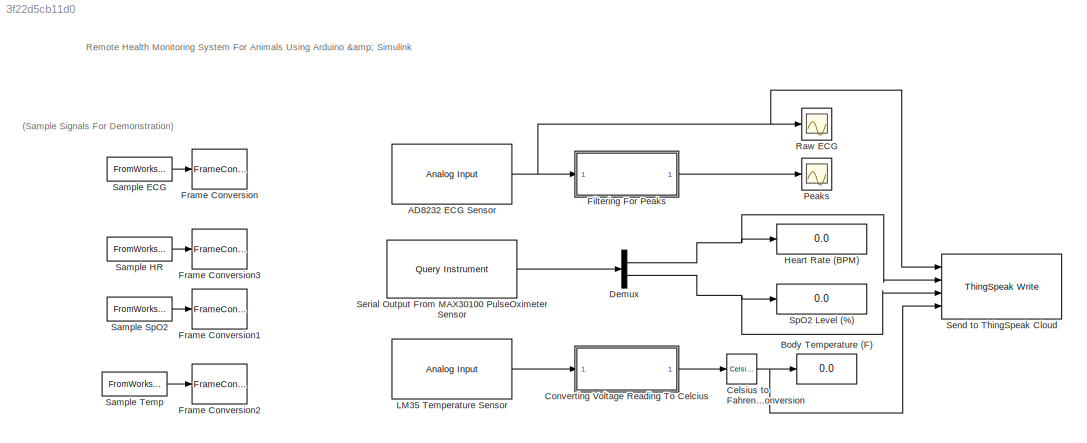
MODEL slx_3f22d5cb11d0
KIND model
CONFIG AbsTol = auto
CONFIG EnableMultiTasking = off
CONFIG FixedStep = auto
CONFIG MaxStep = auto
CONFIG MinStep = auto
CONFIG RelTol = 1e-3
CONFIG SampleTimeConstraint = Unconstrained
CONFIG Solver = VariableStepAuto
CONFIG SolverName = VariableStepAuto
CONFIG StartTime = 0.0
CONFIG StopTime = inf
BLOCK [Reference] AD8232 ECG Sensor   REF=arduinolib/Analog Input
  Ports = [0, 1]
  SourceBlock = arduinolib/Analog Input
  SourceProductBaseCode = ARDUINO
  SourceProductName = Simulink Support Package for Arduino Hardware
  SourceType = Arduino Analog Input
BLOCK [Display] Body Temperature (F) 
  Decimation = 1
  Ports = [1]
BLOCK [Reference] Celsius to Fahrenheit Conversion  REF=simulink_extras/Transformations/Celsius to
Fahrenheit
  Ports = [1, 1]
  SourceBlock = simulink_extras/Transformations/Celsius to\nFahrenheit
  SourceProductBaseCode = SL
  SourceProductName = Simulink
  SourceType = CelsiusToFahrenheit
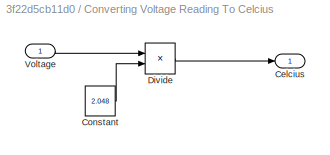
BLOCK [SubSystem] Converting Voltage Reading To Celcius 
  Ports = [1, 1]
  RequestExecContextInheritance = off
BLOCK [Outport] Converting Voltage Reading To Celcius /Celcius
  IconDisplay = Port number
BLOCK [Constant] Converting Voltage Reading To Celcius /Constant
  Value = 2.048
BLOCK [Product] Converting Voltage Reading To Celcius /Divide
  InputSameDT = off
  Inputs = */
  OutDataTypeStr = Inherit: Inherit via internal rule
  Ports = [2, 1]
  RndMeth = Floor
  SaturateOnIntegerOverflow = off
BLOCK [Inport] Converting Voltage Reading To Celcius /Voltage
  IconDisplay = Port number
BLOCK [Demux] Demux
  DisplayOption = bar
  Outputs = 2
  Ports = [1, 2]
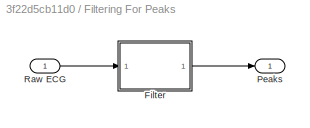
BLOCK [SubSystem] Filtering For Peaks 
  Ports = [1, 1]
  RequestExecContextInheritance = off
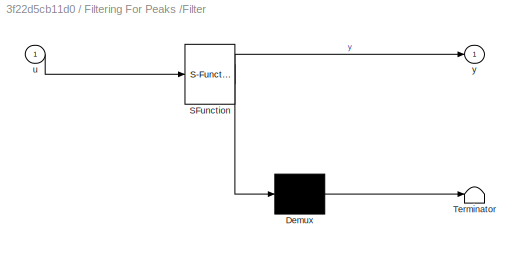
BLOCK [SubSystem] Filtering For Peaks /Filter
  ErrorFcn = Stateflow.Translate.translate
  PermitHierarchicalResolution = ExplicitOnly
  Ports = [1, 1]
  RequestExecContextInheritance = off
  SFBlockType = MATLAB Function
  TreatAsAtomicUnit = on
BLOCK [Demux] Filtering For Peaks /Filter/ Demux 
  Outputs = 1
  Ports = [1, 1]
BLOCK [S-Function] Filtering For Peaks /Filter/ SFunction 
  EnableBusSupport = on
  FunctionName = sf_sfun
  PortCounts = [1 2]
  Ports = [1, 2]
  SFcnIsStateOwnerBlock = off
  SFunctionDeploymentMode = off
  Tag = Stateflow S-Function RemoteHealthMonitoringSystem 3
BLOCK [Terminator] Filtering For Peaks /Filter/ Terminator 
BLOCK [Inport] Filtering For Peaks /Filter/u
  IconDisplay = Port number
BLOCK [Outport] Filtering For Peaks /Filter/y
  IconDisplay = Port number
BLOCK [Outport] Filtering For Peaks /Peaks
  IconDisplay = Port number
BLOCK [Inport] Filtering For Peaks /Raw ECG
  IconDisplay = Port number
BLOCK [FrameConversion] Frame Conversion
  Commented = on
  Ports = [1, 1]
BLOCK [FrameConversion] Frame Conversion1
  Commented = on
  Ports = [1, 1]
BLOCK [FrameConversion] Frame Conversion2
  Commented = on
  Ports = [1, 1]
BLOCK [FrameConversion] Frame Conversion3
  Commented = on
  Ports = [1, 1]
BLOCK [Display] Heart Rate (BPM)
  Decimation = 1
  Ports = [1]
BLOCK [Reference] LM35 Temperature Sensor   REF=arduinolib/Analog Input
  Ports = [0, 1]
  SourceBlock = arduinolib/Analog Input
  SourceProductBaseCode = ARDUINO
  SourceProductName = Simulink Support Package for Arduino Hardware
  SourceType = Arduino Analog Input
BLOCK [Scope] Peaks 
  Floating = off
  NumInputPorts = 1
  Ports = [1]
  ScopeSpecificationString = Simulink.scopes.TimeScopeBlockCfg('CurrentConfiguration', extmgr.ConfigurationSet(extmgr.Configuration('Core','General UI',true),extmgr.Configuration('Core','Source UI',true),extmgr.Configuration('Sources','WiredSimulink',true,'DataLoggingVariableName','ScopeData1'),extmgr.Configuration('Visuals','Time Domain',true,'SerializedDisplays',{struct('MinYLimReal','-31.125','MaxYLimReal','280.125','YLabe...<+1394ch>
BLOCK [Scope] Raw ECG
  Floating = off
  NumInputPorts = 1
  Ports = [1]
  ScopeSpecificationString = Simulink.scopes.TimeScopeBlockCfg('CurrentConfiguration', extmgr.ConfigurationSet(extmgr.Configuration('Core','General UI',true),extmgr.Configuration('Core','Source UI',true),extmgr.Configuration('Sources','WiredSimulink',true),extmgr.Configuration('Visuals','Time Domain',true,'SerializedDisplays',{struct('MinYLimReal','-182.25','MaxYLimReal','340.25','YLabelReal','','MinYLimMag',' 0.00000','MaxYL...<+1462ch>
BLOCK [FromWorkspace] Sample ECG
  Commented = on
  SampleTime = ecg_interval
  VariableName = ecg
  ZeroCross = on
BLOCK [FromWorkspace] Sample HR
  Commented = on
  SampleTime = hr_interval
  VariableName = hr
  ZeroCross = on
BLOCK [FromWorkspace] Sample SpO2
  Commented = on
  SampleTime = spo2_interval
  VariableName = spo2
  ZeroCross = on
BLOCK [FromWorkspace] Sample Temp
  Commented = on
  SampleTime = temp_interval
  VariableName = temp
  ZeroCross = on
BLOCK [Reference] Send  to ThingSpeak Cloud  REF=arduinothingspeaklib/ThingSpeak Write
  Ports = [4]
  SourceBlock = arduinothingspeaklib/ThingSpeak Write
  SourceProductBaseCode = ARDUINO
  SourceProductName = Simulink Support Package for Arduino Hardware
  SourceType = ThingSpeak Write
BLOCK [Reference] Serial Output From MAX30100 PulseOximeter Sensor  REF=instrumentlib/Query Instrument
  Ports = [0, 1]
  SourceBlock = instrumentlib/Query Instrument
  SourceProductBaseCode = IC
  SourceProductName = Instrument Control Toolbox
  SourceType = queryinstrument
BLOCK [Display] SpO2 Level (%)
  Decimation = 1
  Ports = [1]
ANNOTATION (root): (Sample Signals For Demonstration)
ANNOTATION (root): Remote Health Monitoring System For Animals Using Arduino & Simulink
NET AD8232 ECG Sensor :1 -> Filtering For Peaks :1, Raw ECG:1, Send  to ThingSpeak Cloud:1
NET Celsius to Fahrenheit Conversion:1 -> Body Temperature (F) :1, Send  to ThingSpeak Cloud:4
LINE Converting Voltage Reading To Celcius /Constant:1 -> Converting Voltage Reading To Celcius /Divide:2
LINE Converting Voltage Reading To Celcius /Divide:1 -> Converting Voltage Reading To Celcius /Celcius:1
LINE Converting Voltage Reading To Celcius /Voltage:1 -> Converting Voltage Reading To Celcius /Divide:1
LINE Converting Voltage Reading To Celcius :1 -> Celsius to Fahrenheit Conversion:1
NET Demux:1 -> Heart Rate (BPM):1, Send  to ThingSpeak Cloud:2
NET Demux:2 -> Send  to ThingSpeak Cloud:3, SpO2 Level (%):1
LINE Filtering For Peaks /Filter:1 -> Filtering For Peaks /Peaks:1
LINE Filtering For Peaks /Raw ECG:1 -> Filtering For Peaks /Filter:1
LINE Filtering For Peaks :1 -> Peaks :1
LINE LM35 Temperature Sensor :1 -> Converting Voltage Reading To Celcius :1
LINE Sample ECG:1 -> Frame Conversion:1
LINE Sample HR:1 -> Frame Conversion3:1
LINE Sample SpO2:1 -> Frame Conversion1:1
LINE Sample Temp:1 -> Frame Conversion2:1
LINE Serial Output From MAX30100 PulseOximeter Sensor:1 -> Demux:1
note: NET lines group one-source signal fan-out (src -> all destinations, sorted); 1:1 wires keep LINE
CHART Filtering For Peaks
/Filter states=1 transitions=1
  STATE_LABEL 'eML_blk_kernel()'
  STATE_LABEL "SCRIPT:\nfunction y = filter(u)\n    persistent thres samples\n    if isempty(samples)\n        samples = cast(0, 'like', u);\n        thres = cast(0, 'like', u);\n    end\n    samples = [samples, u];\n    if length(samples)<100\n        y = 0;\n        return;\n    end\n    thres = linspace(min(samples), max(samples));\n    thres = thres(75);\n    y = 0;\n    if thres>0\n        if u<thres\n            y = 0;\n   ...<+53ch>"
